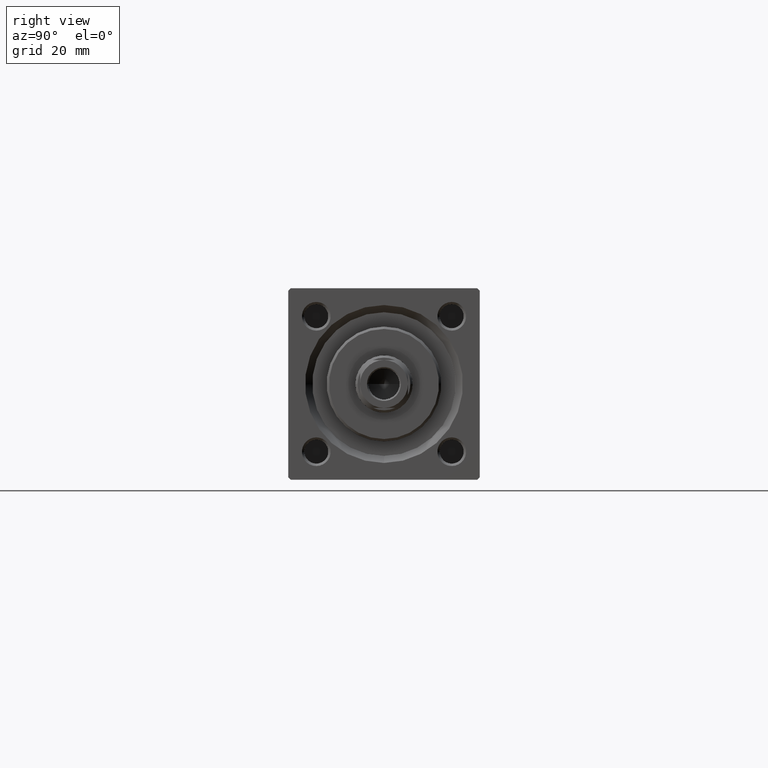
[diagram: clean part render]
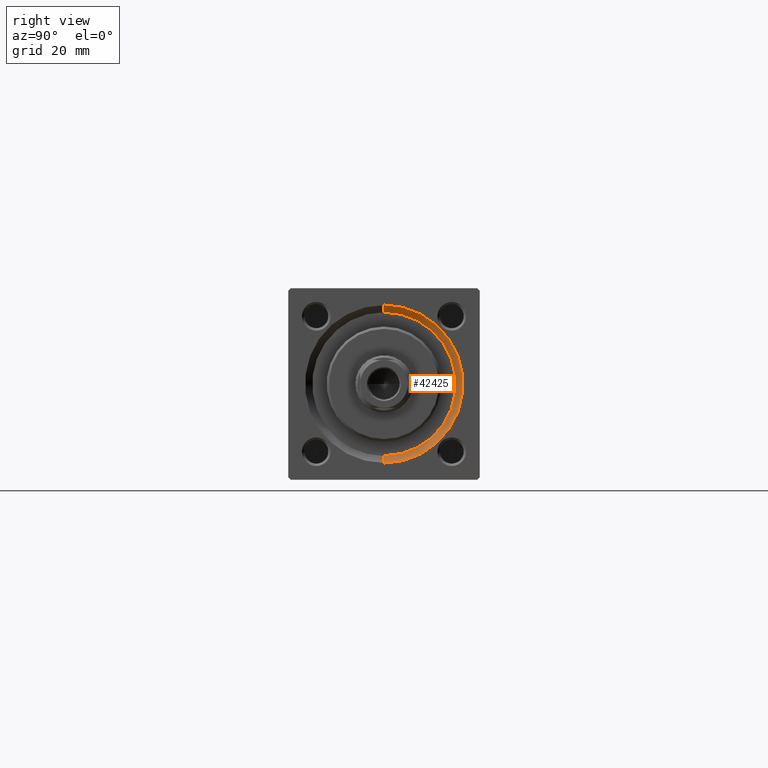
[diagram: same view with one face highlighted and labeled with its STEP entity id]
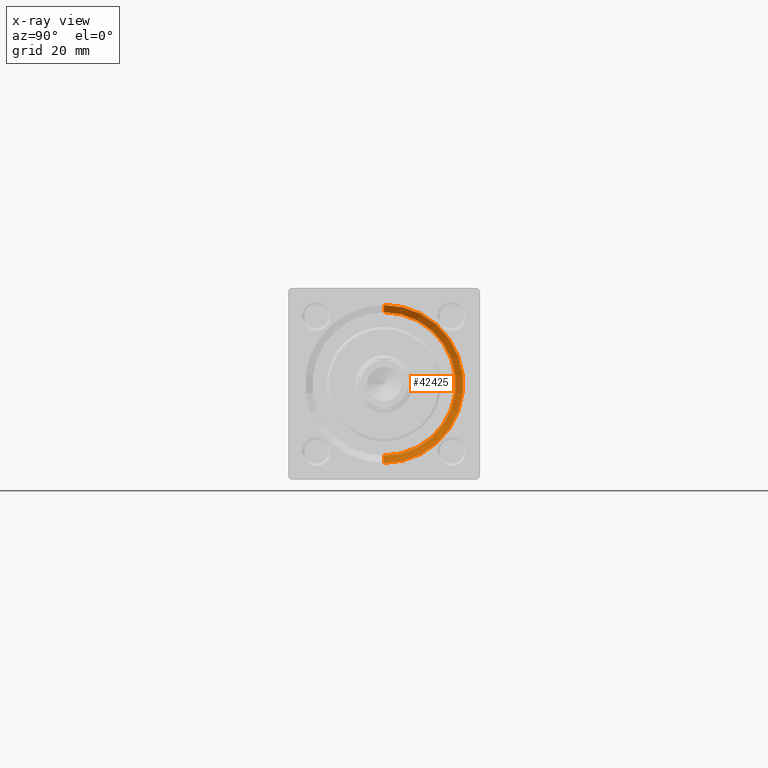
[diagram: x-ray of the same camera — body ghosted, the highlighted face saturated]
A machine part, right view. The second image highlights one B-rep face of the part: STEP entity #42425.
The next image is the same camera in x-ray: the body ghosted, the highlighted face saturated — about 0% of this face is hidden behind the body in this view.
In plain terms, the highlighted conical surface has half-angle 45 deg.
Its self-contained STEP definition (entity closure, byte-faithful):
#891 = CARTESIAN_POINT ( 'NONE',  ( 119.0000000000000142, 0.000000000000000000, 0.000000000000000000 ) ) ;
#1013 = CIRCLE ( 'NONE', #35814, 15.00000000000000000 ) ;
#1741 = CARTESIAN_POINT ( 'NONE',  ( 117.5000000000000000, 0.000000000000000000, -15.00000000000000000 ) ) ;
#1833 = CONICAL_SURFACE ( 'NONE', #28548, 15.00000000000000000, 0.7853981633974482790 ) ;
#10338 = CARTESIAN_POINT ( 'NONE',  ( 117.5000000000000000, 1.836970198721029589E-15, 15.00000000000000000 ) ) ;
#11843 = DIRECTION ( 'NONE',  ( 0.000000000000000000, 0.000000000000000000, 1.000000000000000000 ) ) ;
#14704 = EDGE_CURVE ( 'NONE', #24620, #21690, #35336, .T. ) ;
#16143 = CARTESIAN_POINT ( 'NONE',  ( 117.5000000000000000, 0.000000000000000000, 0.000000000000000000 ) ) ;
#16593 = DIRECTION ( 'NONE',  ( -1.000000000000000000, -0.000000000000000000, -0.000000000000000000 ) ) ;
#19066 = ORIENTED_EDGE ( 'NONE', *, *, #33535, .T. ) ;
#21690 = VERTEX_POINT ( 'NONE', #38632 ) ;
#21778 = AXIS2_PLACEMENT_3D ( 'NONE', #891, #16593, #43462 ) ;
#22449 = EDGE_LOOP ( 'NONE', ( #38932, #40952, #19066, #42199 ) ) ;
#22482 = DIRECTION ( 'NONE',  ( 0.7071067811865474617, 0.000000000000000000, -0.7071067811865474617 ) ) ;
#24620 = VERTEX_POINT ( 'NONE', #10338 ) ;
#24644 = DIRECTION ( 'NONE',  ( 0.7071067811865474617, 8.659560562354932858E-17, 0.7071067811865474617 ) ) ;
#25129 = CARTESIAN_POINT ( 'NONE',  ( 117.5000000000000000, 0.000000000000000000, 0.000000000000000000 ) ) ;
#28464 = CARTESIAN_POINT ( 'NONE',  ( 117.5000000000000000, 1.836970198721029589E-15, 15.00000000000000000 ) ) ;
#28548 = AXIS2_PLACEMENT_3D ( 'NONE', #25129, #29200, #40845 ) ;
#28935 = EDGE_CURVE ( 'NONE', #21690, #31814, #34741, .T. ) ;
#29200 = DIRECTION ( 'NONE',  ( 1.000000000000000000, 0.000000000000000000, 0.000000000000000000 ) ) ;
#29926 = VECTOR ( 'NONE', #22482, 1000.000000000000114 ) ;
#31366 = VERTEX_POINT ( 'NONE', #1741 ) ;
#31814 = VERTEX_POINT ( 'NONE', #47263 ) ;
#31853 = DIRECTION ( 'NONE',  ( 1.000000000000000000, 0.000000000000000000, 0.000000000000000000 ) ) ;
#33535 = EDGE_CURVE ( 'NONE', #31366, #31814, #38213, .T. ) ;
#34741 = CIRCLE ( 'NONE', #21778, 16.50000000000001421 ) ;
#35336 = LINE ( 'NONE', #28464, #46527 ) ;
#35814 = AXIS2_PLACEMENT_3D ( 'NONE', #16143, #31853, #11843 ) ;
#36799 = FACE_OUTER_BOUND ( 'NONE', #22449, .T. ) ;
#38213 = LINE ( 'NONE', #41757, #29926 ) ;
#38632 = CARTESIAN_POINT ( 'NONE',  ( 119.0000000000000142, 2.020667218593134678E-15, 16.50000000000001421 ) ) ;
#38932 = ORIENTED_EDGE ( 'NONE', *, *, #14704, .F. ) ;
#40845 = DIRECTION ( 'NONE',  ( 0.000000000000000000, 0.000000000000000000, -1.000000000000000000 ) ) ;
#40952 = ORIENTED_EDGE ( 'NONE', *, *, #45738, .F. ) ;
#41757 = CARTESIAN_POINT ( 'NONE',  ( 117.5000000000000000, 0.000000000000000000, -15.00000000000000000 ) ) ;
#42199 = ORIENTED_EDGE ( 'NONE', *, *, #28935, .F. ) ;
#42425 = ADVANCED_FACE ( 'NONE', ( #36799 ), #1833, .F. ) ;
#43462 = DIRECTION ( 'NONE',  ( 0.000000000000000000, 0.000000000000000000, 1.000000000000000000 ) ) ;
#45738 = EDGE_CURVE ( 'NONE', #31366, #24620, #1013, .T. ) ;
#46527 = VECTOR ( 'NONE', #24644, 1000.000000000000114 ) ;
#47263 = CARTESIAN_POINT ( 'NONE',  ( 119.0000000000000142, 0.000000000000000000, -16.50000000000001421 ) ) ;